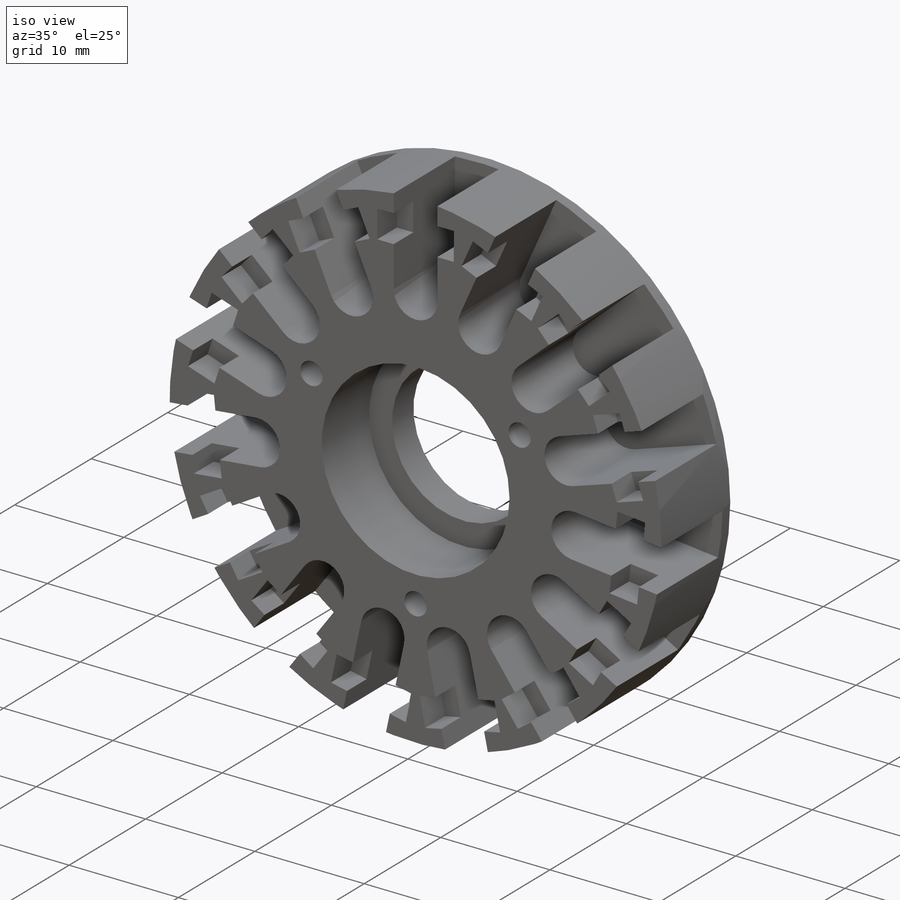
[diagram: iso view]
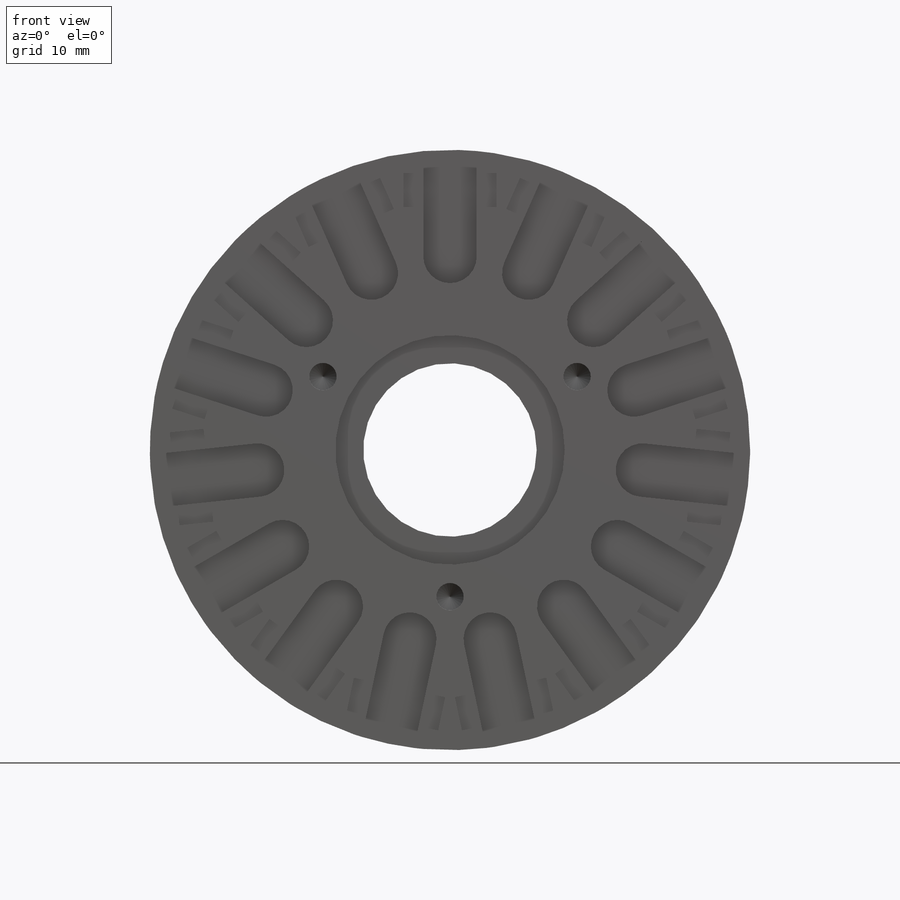
[diagram: front view]
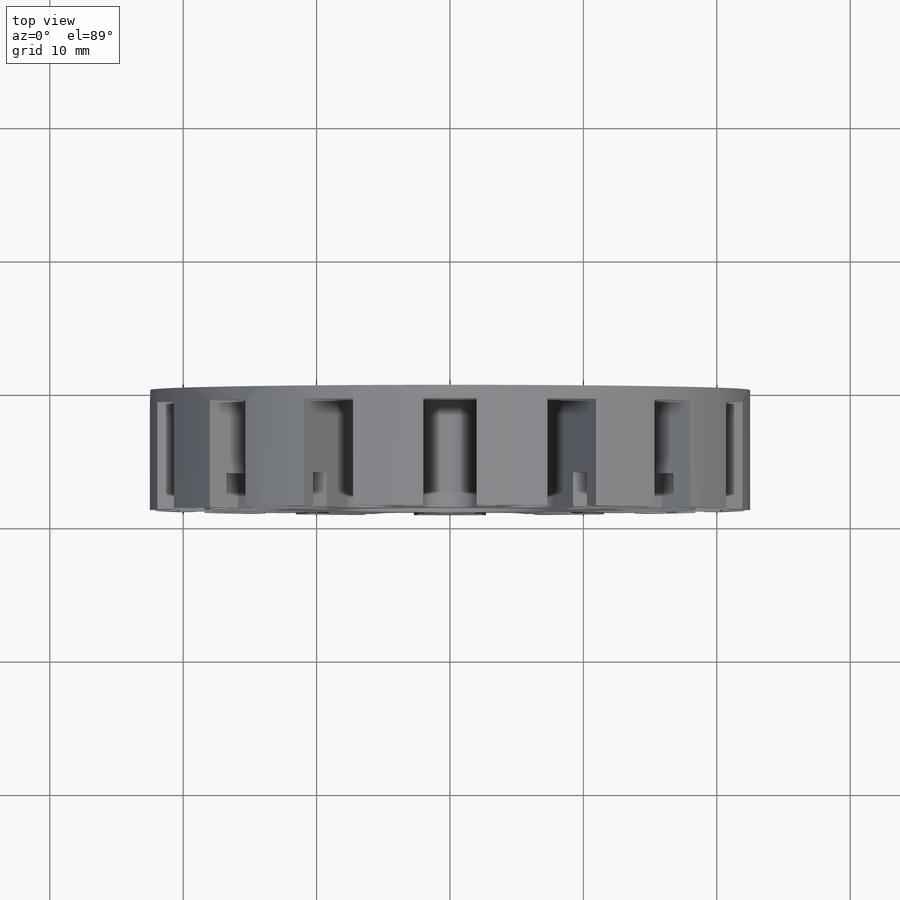
[diagram: top view]
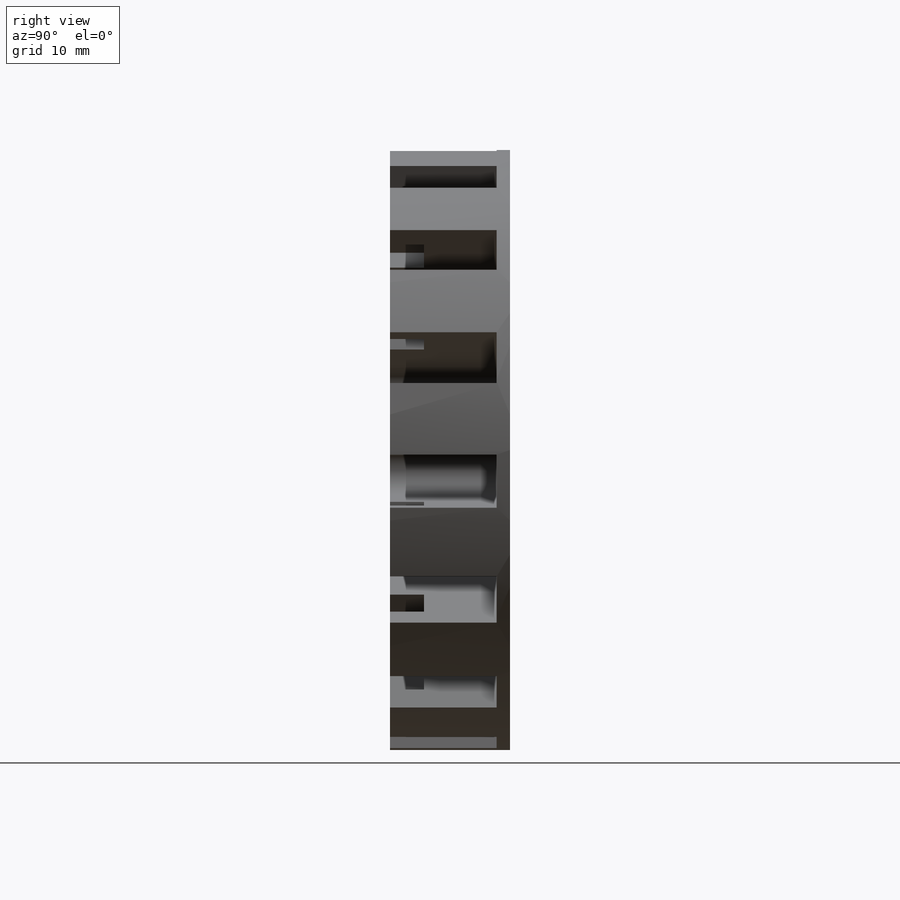
[diagram: right view]
SOLIDWORKS PART (.sldprt)
format: sldprt  version: not decoded by parser v0  size: 478,208 bytes
history: native  units: mm
features: sketch x10, cut_extrude x3, hole x3, material x1, revolve x1, pattern_circular x1 (+13 scaffold rows collapsed)
feature tree (32):
  scaffold x13  (default folders/planes/origin — collapsed)
  material  "Material <not specified>"
  sketch  "Sketch1"
  revolve  "Revolve1"  Angle=360deg
  sketch  "Sketch2"
  cut_extrude  "Cut-Extrude1"  Depth=8mm
  sketch  "Sketch3"  dims[D1=1.65mm D2=0.0mm D3=2.55mm]
  cut_extrude  "Cut-Extrude2"  Depth=1.5mm
  sketch  "Sketch4"  dims[D1=1.65mm D2=2.55mm D3=2.55mm D4=2.55mm]
  cut_extrude  "Cut-Extrude3"  Depth=1.5mm
  hole  "Ø2.05 (2.05) Diameter Hole1"  Diameter=2.05mm Depth=8mm
  sketch  "Sketch48"
  sketch  "Sketch47"  dims[hole-wizard template sketch: 47 standard entries collapsed; hole parameters kept: c15.Hole Depth=8.0mm c15.D3=~14.816244mm c15.Drill Angle=118.0deg]
  hole  "CBORE for M12 Hex Head Bolt1"  Diameter=13mm Depth=9mm
  sketch  "Sketch50"
  sketch  "Sketch49"  dims[hole-wizard template sketch: 41 standard entries collapsed; hole parameters kept: c12.Thru Hole Dia.=13.0mm c12.Thru Hole Depth=9.0mm c12.C'Bore Dia.=17.2mm c12.C'Bore Depth=6.2mm]
  hole  "Ø2.5 (2.5) Diameter Hole1"  Diameter=2.5mm Depth=5mm
  sketch  "Sketch52"
  sketch  "Sketch51"  dims[hole-wizard template sketch: 50 standard entries collapsed; hole parameters above]
  pattern_circular  "CirPattern1"  Count=15 Angle=360deg
decode coverage: 13 of 18 modeling features carry decoded parameters
note: ~ marks probable driven/reference dimensions
note: suppression state not decoded; provenance and decode notes live in map.json
